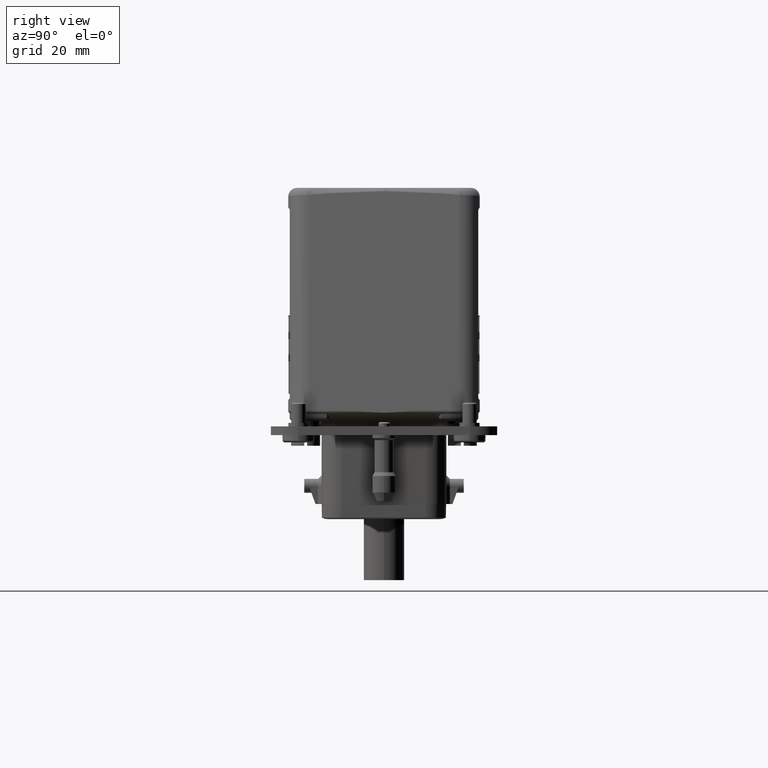
[diagram: clean part render]
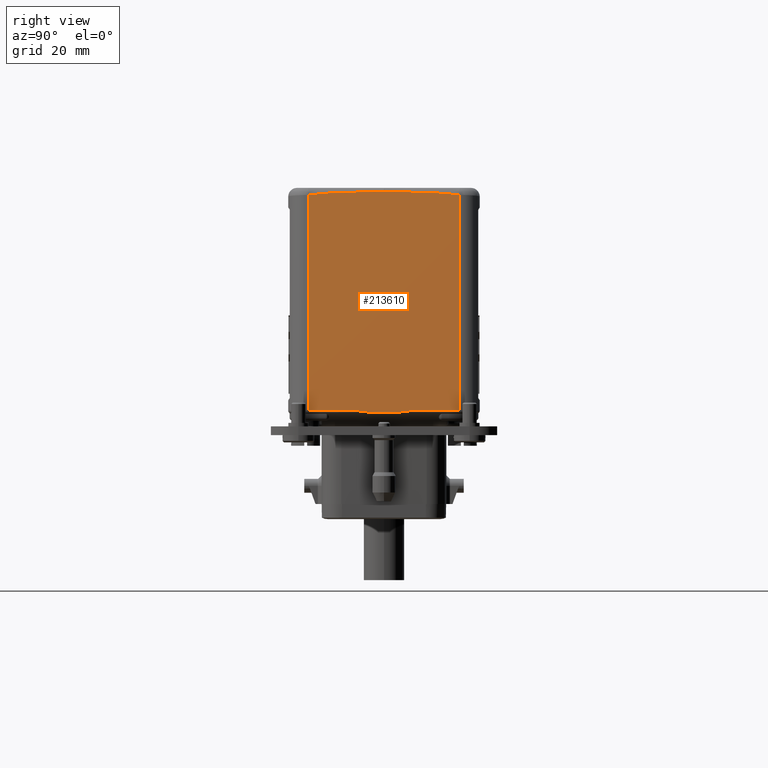
[diagram: same view with one face highlighted and labeled with its STEP entity id]
A machine part, right view. The second image highlights one B-rep face of the part: STEP entity #213610.
In plain terms, the highlighted planar face has unit normal (-0.9848, 0, -0.1736).
Its self-contained STEP definition (entity closure, byte-faithful):
#4290=CARTESIAN_POINT('',(20.5562279058652,126.305388246774,
55.127847170845));
#4300=VERTEX_POINT('',#4290);
#4330=CARTESIAN_POINT('',(20.556227906092,10.6907110109295,
75.5138341334272));
#4340=DIRECTION('',(0.,0.984807753012208,-0.173648177666931));
#4350=VECTOR('',#4340,1.);
#4360=LINE('',#4330,#4350);
#4370=CARTESIAN_POINT('',(20.5562279060906,51.9199156959813,
68.2440129543007));
#4380=VERTEX_POINT('',#4370);
#4390=EDGE_CURVE('',#4380,#4300,#4360,.T.);
#16220=CARTESIAN_POINT('',(72.6891896308619,51.9199156959813,
68.2440129543007));
#16230=VERTEX_POINT('',#16220);
#16650=CARTESIAN_POINT('',(55.3097710761084,51.9199156959813,
68.2440129543007));
#16660=VERTEX_POINT('',#16650);
#16690=CARTESIAN_POINT('',(0.,51.9199156959813,68.2440129543007));
#16700=DIRECTION('',(1.,-1.24492111605191E-30,3.55728937967512E-46));
#16710=VECTOR('',#16700,1.);
#16720=LINE('',#16690,#16710);
#16730=EDGE_CURVE('',#16660,#16230,#16720,.T.);
#30290=CARTESIAN_POINT('',(37.9356464606201,51.9199156959813,
68.2440129543007));
#30300=VERTEX_POINT('',#30290);
#30690=CARTESIAN_POINT('',(0.,51.9199156959813,68.2440129543007));
#30700=DIRECTION('',(1.,-1.24492111605191E-30,3.55728937967512E-46));
#30710=VECTOR('',#30700,1.);
#30720=LINE('',#30690,#30710);
#30730=EDGE_CURVE('',#4380,#30300,#30720,.T.);
#32530=CARTESIAN_POINT('',(46.6227087681122,127.621707233559,
54.8957446182581));
#32540=VERTEX_POINT('',#32530);
#32590=CARTESIAN_POINT('',(46.6227087681122,127.621707233559,
54.8957446182581));
#32600=CARTESIAN_POINT('',(46.4866279109697,127.617915220538,
54.8964132524648));
#32610=CARTESIAN_POINT('',(46.3505448484038,127.61419211786,
54.8970697359189));
#32620=CARTESIAN_POINT('',(46.2144638500093,127.610390305503,
54.897740098013));
#32630=CARTESIAN_POINT('',(46.1804435992638,127.609439852382,
54.8979076885421));
#32640=CARTESIAN_POINT('',(46.1464235335914,127.60848270936,
54.8980764586813));
#32650=CARTESIAN_POINT('',(46.1124035524041,127.607522074239,
54.8982458445717));
#32660=CARTESIAN_POINT('',(46.078383572765,127.606561439162,
54.8984152304545));
#32670=CARTESIAN_POINT('',(46.0443636043858,127.605600003164,
54.8985847575612));
#32680=CARTESIAN_POINT('',(46.0103436477511,127.604637761621,
54.8987544267071));
#32690=CARTESIAN_POINT('',(45.9423037344817,127.602713278536,
54.8990937649988));
#32700=CARTESIAN_POINT('',(45.8742638681897,127.600785573323,
54.8994336714388));
#32710=CARTESIAN_POINT('',(45.8062240527694,127.598854608444,
54.8997741526459));
#32720=CARTESIAN_POINT('',(45.5340647910674,127.591130748925,
54.9011360774742));
#32730=CARTESIAN_POINT('',(45.2619063429726,127.58335475075,
54.9025071957544));
#32740=CARTESIAN_POINT('',(44.9897489606416,127.575524086467,
54.9038879531444));
#32750=CARTESIAN_POINT('',(44.4454341950377,127.559862757873,
54.9066494679291));
#32760=CARTESIAN_POINT('',(43.9011236895416,127.543983016204,
54.9094494948321));
#32770=CARTESIAN_POINT('',(43.3568195037034,127.527861916296,
54.9122920797046));
#32780=CARTESIAN_POINT('',(42.812515314425,127.511740816286,
54.9151346645952));
#32790=CARTESIAN_POINT('',(42.2682174426295,127.495378432643,
54.9180197943));
#32800=CARTESIAN_POINT('',(41.7239279849553,127.478747341651,
54.9209523043604));
#32810=CARTESIAN_POINT('',(41.1796385226045,127.462116250517,
54.9238848144461));
#32820=CARTESIAN_POINT('',(40.6353574680992,127.4452165562,
54.9268646865199));
#32830=CARTESIAN_POINT('',(40.0910869646837,127.428015025623,
54.9298977804701));
#32840=CARTESIAN_POINT('',(39.5468164563282,127.41081349489,
54.9329308744478));
#32850=CARTESIAN_POINT('',(39.0025564865083,127.393310277334,
54.936017163952));
#32860=CARTESIAN_POINT('',(38.4583093013915,127.375464445104,
54.9391638656672));
#32870=CARTESIAN_POINT('',(37.9140621125191,127.357618612751,
54.9423105674042));
#32880=CARTESIAN_POINT('',(37.369827685829,127.339430387053,
54.945517642326));
#32890=CARTESIAN_POINT('',(36.8256084983589,127.320848393592,
54.9487941491284));
#32900=CARTESIAN_POINT('',(36.2813893122768,127.302266400179,
54.9520706559224));
#32910=CARTESIAN_POINT('',(35.7371853212135,127.283290979338,
54.9554165345872));
#32920=CARTESIAN_POINT('',(35.1929994853929,127.263856149855,
54.9588434193906));
#32930=CARTESIAN_POINT('',(34.6488136575707,127.244421320657,
54.9622703041437));
#32940=CARTESIAN_POINT('',(34.104645902874,127.224527630947,
54.9657780983854));
#32950=CARTESIAN_POINT('',(33.5605000955077,127.204087928212,
54.9693821694553));
#32960=CARTESIAN_POINT('',(33.0163543107663,127.183648226327,
54.9729862403752));
#32970=CARTESIAN_POINT('',(32.4722303249141,127.162663446529,
54.9766864232379));
#32980=CARTESIAN_POINT('',(31.9281337080504,127.141014349958,
54.9805037430714));
#32990=CARTESIAN_POINT('',(31.6560853987139,127.130189801636,
54.9824124029945));
#33000=CARTESIAN_POINT('',(31.3840439503096,127.119198595711,
54.9843504491496));
#33010=CARTESIAN_POINT('',(31.1120103073216,127.108021389935,
54.9863212920969));
#33020=CARTESIAN_POINT('',(30.8399766674926,127.096844184288,
54.9882921350214));
#33030=CARTESIAN_POINT('',(30.5679508229215,127.085481052521,
54.9902957617329));
#33040=CARTESIAN_POINT('',(30.2959339740184,127.073908544277,
54.9923363071708));
#33050=CARTESIAN_POINT('',(30.0239221035373,127.062336247832,
54.9943768152629));
#33060=CARTESIAN_POINT('',(29.7519038684148,127.050554053274,
54.9964543340596));
#33070=CARTESIAN_POINT('',(29.4798534997937,127.038531731008,
54.998574193846));
#33080=CARTESIAN_POINT('',(29.2078063911926,127.026509552806,
55.0006940282298));
#33090=CARTESIAN_POINT('',(28.9357407655911,127.014247988353,
55.0028560728575));
#33100=CARTESIAN_POINT('',(28.6636730462445,127.001711238407,
55.0050666401234));
#33110=CARTESIAN_POINT('',(28.3916053655621,126.989174490243,
55.0072772070751));
#33120=CARTESIAN_POINT('',(28.1195357652507,126.976362805673,
55.0095362527442));
#33130=CARTESIAN_POINT('',(27.8474821521576,126.963230147497,
55.0118518947089));
#33140=CARTESIAN_POINT('',(27.5754284838782,126.950097486658,
55.0141675371434));
#33150=CARTESIAN_POINT('',(27.3033909234762,126.936644249227,
55.0165397058803));
#33160=CARTESIAN_POINT('',(27.0313864974681,126.922809389179,
55.0189791649812));
#33170=CARTESIAN_POINT('',(26.759381940807,126.908974522485,
55.0214186252538));
#33180=CARTESIAN_POINT('',(26.4874105460446,126.894758705825,
55.0239252572839));
#33190=CARTESIAN_POINT('',(26.2154867222002,126.880078001268,
55.026513861593));
#33200=CARTESIAN_POINT('',(26.0795247518261,126.872737645834,
55.027808164304));
#33210=CARTESIAN_POINT('',(25.9435745912298,126.865280653685,
55.0291230332149));
#33220=CARTESIAN_POINT('',(25.8076377165181,126.857693357513,
55.0304608782405));
#33230=CARTESIAN_POINT('',(25.6717008292446,126.850106060641,
55.0317987233897));
#33240=CARTESIAN_POINT('',(25.5357772203902,126.842388512477,
55.033159535356));
#33250=CARTESIAN_POINT('',(25.3998681796684,126.834524103882,
55.0345462427785));
#33260=CARTESIAN_POINT('',(25.2639591269553,126.826659694594,
55.0359329503234));
#33270=CARTESIAN_POINT('',(25.1280646283061,126.818648500513,
55.0373455399876));
#33280=CARTESIAN_POINT('',(24.9921858619327,126.81047001249,
55.0387876280874));
#33290=CARTESIAN_POINT('',(24.8563070868755,126.802291523945,
55.0402297162793));
#33300=CARTESIAN_POINT('',(24.7204440164454,126.793945853322,
55.0417012831822));
#33310=CARTESIAN_POINT('',(24.584597875479,126.785407192751,
55.04320687942));
#33320=CARTESIAN_POINT('',(24.4487517304323,126.776868531924,
55.0447124757029));
#33330=CARTESIAN_POINT('',(24.3129224646,126.768137053126,
55.0462520709964));
#33340=CARTESIAN_POINT('',(24.1771116225333,126.75917953259,
55.0478315235473));
#33350=CARTESIAN_POINT('',(24.0413007863232,126.750222012439,
55.0494109760301));
#33360=CARTESIAN_POINT('',(23.9055082869425,126.741038727812,
55.0510302368815));
#33370=CARTESIAN_POINT('',(23.7697364744008,126.731585694943,
55.0526970616257));
#33380=CARTESIAN_POINT('',(23.6339646860788,126.722132663761,
55.0543638860725));
#33390=CARTESIAN_POINT('',(23.4982134276961,126.712410357853,
55.0560781909189));
#33400=CARTESIAN_POINT('',(23.3624867142123,126.702358463357,
55.0578506111257));
#33410=CARTESIAN_POINT('',(23.2267600599688,126.692306573249,
55.0596230305589));
#33420=CARTESIAN_POINT('',(23.0910576478742,126.681925964833,
55.0614534118988));
#33430=CARTESIAN_POINT('',(22.9553867416587,126.671130073277,
55.0633570188609));
#33440=CARTESIAN_POINT('',(22.8875512903449,126.665732127642,
55.0643088223167));
#33450=CARTESIAN_POINT('',(22.8197237500053,126.66022988061,
55.0652790168872));
#33460=CARTESIAN_POINT('',(22.751905521586,126.654608647756,
55.0662701919041));
#33470=CARTESIAN_POINT('',(22.6840873023016,126.64898741566,
55.0672613667875));
#33480=CARTESIAN_POINT('',(22.6162783679626,126.643247277779,
55.0682735079986));
#33490=CARTESIAN_POINT('',(22.5484806570549,126.637369763008,
55.0693098724322));
#33500=CARTESIAN_POINT('',(22.4806829584366,126.631492249302,
55.070346236678));
#33510=CARTESIAN_POINT('',(22.4128964374886,126.625477481223,
55.0714068025789));
#33520=CARTESIAN_POINT('',(22.3451238043242,126.6193016716,
55.0724957644431));
#33530=CARTESIAN_POINT('',(22.2773511893843,126.613125863639,
55.0735847260144));
#33540=CARTESIAN_POINT('',(22.2095923859358,126.606789213036,
55.0747020484835));
#33550=CARTESIAN_POINT('',(22.1418512517933,126.600260198118,
55.0758532899708));
#33560=CARTESIAN_POINT('',(22.0741101040139,126.593731181887,
55.0770045316899));
#33570=CARTESIAN_POINT('',(22.006386669277,126.58701016032,
55.0781896291292));
#33580=CARTESIAN_POINT('',(21.9386860740056,126.580053780288,
55.079416226617));
#33590=CARTESIAN_POINT('',(21.870984826008,126.573097333186,
55.0806428359308));
#33600=CARTESIAN_POINT('',(21.8033011860267,126.565905622232,
55.0819109286104));
#33610=CARTESIAN_POINT('',(21.7356512691856,126.55841709021,
55.0832313588518));
#33620=CARTESIAN_POINT('',(21.7018262796547,126.554672820755,
55.0838915745798));
#33630=CARTESIAN_POINT('',(21.6680096976973,126.550853993636,
55.0845649368354));
#33640=CARTESIAN_POINT('',(21.634203692331,126.546950097506,
55.085253299053));
#33650=CARTESIAN_POINT('',(21.6003976851993,126.543046201172,
55.0859416613066));
#33660=CARTESIAN_POINT('',(21.5666022268238,126.539057293419,
55.086645013367));
#33670=CARTESIAN_POINT('',(21.5328197376221,126.534970093007,
55.0873656970753));
#33680=CARTESIAN_POINT('',(21.4990372503493,126.530882892827,
55.0880863807425));
#33690=CARTESIAN_POINT('',(21.4652676835801,126.526697488417,
55.0888243804652));
#33700=CARTESIAN_POINT('',(21.4315139455705,126.52239671023,
55.0895827236976));
#33710=CARTESIAN_POINT('',(21.3977602174003,126.518095933297,
55.0903410667089));
#33720=CARTESIAN_POINT('',(21.3640222319482,126.513679924932,
55.0911197281307));
#33730=CARTESIAN_POINT('',(21.3303038202339,126.509125857914,
55.0919227330179));
#33740=CARTESIAN_POINT('',(21.2965848404351,126.50457171417,
55.092725751434));
#33750=CARTESIAN_POINT('',(21.2628878254397,126.499880117021,
55.0935530065687));
#33760=CARTESIAN_POINT('',(21.2292111002001,126.495018584631,
55.0944102258967));
#33770=CARTESIAN_POINT('',(21.1955300616263,126.490156429573,
55.0952675550178));
#33780=CARTESIAN_POINT('',(21.1618469957227,126.485121482354,
55.0961553520842));
#33790=CARTESIAN_POINT('',(21.1281929862429,126.479871095051,
55.0970811370248));
#33800=CARTESIAN_POINT('',(21.0945389017149,126.474620696041,
55.0980069240299));
#33810=CARTESIAN_POINT('',(21.0609137803904,126.469155837274,
55.0989705260756));
#33820=CARTESIAN_POINT('',(21.0273492061217,126.463409561697,
55.0999837494984));
#33830=CARTESIAN_POINT('',(21.0105668085375,126.460536404999,
55.1004903645439));
#33840=CARTESIAN_POINT('',(20.9937994060927,126.457592417298,
55.1010094690059));
#33850=CARTESIAN_POINT('',(20.9770508941055,126.454565233348,
55.1015432432119));
#33860=CARTESIAN_POINT('',(20.9603023718016,126.451538047533,
55.1020770177467));
#33870=CARTESIAN_POINT('',(20.9435726533732,126.448427767851,
55.1026254439722));
#33880=CARTESIAN_POINT('',(20.9268660206687,126.44521776961,
55.1031914532701));
#33890=CARTESIAN_POINT('',(20.9101593935999,126.442007772452,
55.1037574623771));
#33900=CARTESIAN_POINT('',(20.893475678402,126.438698227775,
55.1043410243982));
#33910=CARTESIAN_POINT('',(20.8768203685031,126.435266040222,
55.1049462116666));
#33920=CARTESIAN_POINT('',(20.8601651029431,126.431833861806,
55.1055513973239));
#33930=CARTESIAN_POINT('',(20.8435378846848,126.428279347984,
55.1061781540146));
#33940=CARTESIAN_POINT('',(20.8269471635762,126.424569016942,
55.1068323854847));
#33950=CARTESIAN_POINT('',(20.8103565777656,126.420858716157,
55.1074866116196));
#33960=CARTESIAN_POINT('',(20.7938016931689,126.416993205083,
55.1081682055162));
#33970=CARTESIAN_POINT('',(20.777297653002,126.4129210236,
55.1088862409821));
#33980=CARTESIAN_POINT('',(20.7690456243919,126.410884930755,
55.109245259086));
#33990=CARTESIAN_POINT('',(20.7608063414038,126.408796816797,
55.1096134498949));
#34000=CARTESIAN_POINT('',(20.7525828209415,126.406647353317,
55.1099924583004));
#34010=CARTESIAN_POINT('',(20.7443640591425,126.404499133656,
55.1103712473871));
#34020=CARTESIAN_POINT('',(20.7361373011694,126.402283519789,
55.1107619199113));
#34030=CARTESIAN_POINT('',(20.7279138502825,126.399988829262,
55.1111665357636));
#34040=CARTESIAN_POINT('',(20.7196911890115,126.397694359072,
55.1115711127646));
#34050=CARTESIAN_POINT('',(20.7114753291759,126.3953218808,
55.1119894446939));
#34060=CARTESIAN_POINT('',(20.7032884386717,126.392858144165,
55.1124238679359));
#34070=CARTESIAN_POINT('',(20.6951014606258,126.390394381186,
55.1128582958232));
#34080=CARTESIAN_POINT('',(20.6869433690646,126.387839623951,
55.1133087684452));
#34090=CARTESIAN_POINT('',(20.6788354803339,126.385172828303,
55.11377899647));
#34100=CARTESIAN_POINT('',(20.6707274902082,126.382505999304,
55.1142492303754));
#34110=CARTESIAN_POINT('',(20.6626690451431,126.379727547188,
55.1147391464399));
#34120=CARTESIAN_POINT('',(20.6546814374846,126.376802224707,
55.1152549597205));
#34130=CARTESIAN_POINT('',(20.6466939621323,126.373876950681,
55.1157707644572));
#34140=CARTESIAN_POINT('',(20.6387750319069,126.370805464831,
55.1163123502921));
#34150=CARTESIAN_POINT('',(20.6309545220908,126.367526101879,
55.1168905904601));
#34160=CARTESIAN_POINT('',(20.6268852187638,126.365819726861,
55.1171914704149));
#34170=CARTESIAN_POINT('',(20.6228423611915,126.364056411663,
55.117502390466));
#34180=CARTESIAN_POINT('',(20.6188330629386,126.362222266362,
55.1178257997691));
#34190=CARTESIAN_POINT('',(20.6148238603591,126.360388164829,
55.1181492013547));
#34200=CARTESIAN_POINT('',(20.6108476903462,126.358483271356,
55.1184850854717));
#34210=CARTESIAN_POINT('',(20.606916710498,126.356487825458,
55.1188369364221));
#34220=CARTESIAN_POINT('',(20.6029844398212,126.354491724308,
55.119188902911));
#34230=CARTESIAN_POINT('',(20.5991026276285,126.352408639673,
55.1195562069354));
#34240=CARTESIAN_POINT('',(20.5952754207575,126.350198925666,
55.1199458391345));
#34250=CARTESIAN_POINT('',(20.5914426422097,126.34798599474,
55.1203360385632));
#34260=CARTESIAN_POINT('',(20.5876459434745,126.345634845361,
55.1207506096307));
#34270=CARTESIAN_POINT('',(20.5839735858667,126.343124369704,
55.1211932742234));
#34280=CARTESIAN_POINT('',(20.5816379445432,126.341527692226,
55.1214748115423));
#34290=CARTESIAN_POINT('',(20.5793518490653,126.33986588768,
55.1217678325128));
#34300=CARTESIAN_POINT('',(20.57713965374,126.338126329207,
55.1220745636061));
#34310=CARTESIAN_POINT('',(20.5749275753885,126.336386862717,
55.1223812784805));
#34320=CARTESIAN_POINT('',(20.5727879227432,126.334569135527,
55.1227017928344));
#34330=CARTESIAN_POINT('',(20.5707527528745,126.332651801915,
55.1230398704812));
#34340=CARTESIAN_POINT('',(20.5687180218618,126.330734881749,
55.1233778752264));
#34350=CARTESIAN_POINT('',(20.5667845776654,126.328716544381,
55.123733762565));
#34360=CARTESIAN_POINT('',(20.5650067032106,126.326565737905,
55.124113007777));
#34370=CARTESIAN_POINT('',(20.5632271190641,126.324412863107,
55.1244926176899));
#34380=CARTESIAN_POINT('',(20.5615919857616,126.322109254063,
55.1248988061168));
#34390=CARTESIAN_POINT('',(20.5602287270616,126.319670971314,
55.125328741152));
#34400=CARTESIAN_POINT('',(20.5590029944471,126.317478663509,
55.125715304168));
#34410=CARTESIAN_POINT('',(20.5579969717629,126.315178441561,
55.1261208953596));
#34420=CARTESIAN_POINT('',(20.5572996632926,126.312773445419,
55.126544961068));
#34430=CARTESIAN_POINT('',(20.5569515130535,126.311572685615,
55.1267566874188));
#34440=CARTESIAN_POINT('',(20.5566825795376,126.310352758489,
55.1269717934856));
#34450=CARTESIAN_POINT('',(20.5565013856664,126.309116896271,
55.1271897093392));
#34460=CARTESIAN_POINT('',(20.5563203045094,126.307881802838,
55.1274074896351));
#34470=CARTESIAN_POINT('',(20.5562279063578,126.30663567459,
55.1276272156665));
#34480=CARTESIAN_POINT('',(20.5562279063578,126.305388246778,
55.1278471708463));
#34490=B_SPLINE_CURVE_WITH_KNOTS('',3,(#32590,#32600,#32610,#32620,
#32630,#32640,#32650,#32660,#32670,#32680,#32690,#32700,#32710,#32720,
#32730,#32740,#32750,#32760,#32770,#32780,#32790,#32800,#32810,#32820,
#32830,#32840,#32850,#32860,#32870,#32880,#32890,#32900,#32910,#32920,
#32930,#32940,#32950,#32960,#32970,#32980,#32990,#33000,#33010,#33020,
#33030,#33040,#33050,#33060,#33070,#33080,#33090,#33100,#33110,#33120,
#33130,#33140,#33150,#33160,#33170,#33180,#33190,#33200,#33210,#33220,
#33230,#33240,#33250,#33260,#33270,#33280,#33290,#33300,#33310,#33320,
#33330,#33340,#33350,#33360,#33370,#33380,#33390,#33400,#33410,#33420,
#33430,#33440,#33450,#33460,#33470,#33480,#33490,#33500,#33510,#33520,
#33530,#33540,#33550,#33560,#33570,#33580,#33590,#33600,#33610,#33620,
#33630,#33640,#33650,#33660,#33670,#33680,#33690,#33700,#33710,#33720,
#33730,#33740,#33750,#33760,#33770,#33780,#33790,#33800,#33810,#33820,
#33830,#33840,#33850,#33860,#33870,#33880,#33890,#33900,#33910,#33920,
#33930,#33940,#33950,#33960,#33970,#33980,#33990,#34000,#34010,#34020,
#34030,#34040,#34050,#34060,#34070,#34080,#34090,#34100,#34110,#34120,
#34130,#34140,#34150,#34160,#34170,#34180,#34190,#34200,#34210,#34220,
#34230,#34240,#34250,#34260,#34270,#34280,#34290,#34300,#34310,#34320,
#34330,#34340,#34350,#34360,#34370,#34380,#34390,#34400,#34410,#34420,
#34430,#34440,#34450,#34460,#34470,#34480),.UNSPECIFIED.,.F.,.F.,(4,3,3,
3,3,3,3,3,3,3,3,3,3,3,3,3,3,3,3,3,3,3,3,3,3,3,3,3,3,3,3,3,3,3,3,3,3,3,3,
3,3,3,3,3,3,3,3,3,3,3,3,3,3,3,3,3,3,3,3,3,3,3,3,4),(0.,0.40840662783463,
0.510508473848475,0.61261039372997,0.816814441654314,1.63363316162616,
3.2672797223721,4.90093273110012,6.5345862557195,8.16823574158573,
9.80187829343881,11.4355128474721,13.0691402057488,14.702762904381,
15.5195737030803,16.3363849232909,17.1532557366514,17.9702922333118,
18.7874181013628,19.6045454698283,20.4215985548211,20.830080513038,
21.2385282570074,21.6469416967078,22.0553235553437,22.4636793565749,
22.8720172015721,23.2803472594586,23.6886808864209,23.8928526028199,
24.0970293532571,24.3012123218554,24.5054026216162,24.7096016073342,
24.9138222097309,25.0159359256969,25.1180472150006,25.2201545338305,
25.322258065518,25.4243610293537,25.5265439823515,25.6287646818206,
25.6798586495539,25.7309334997687,25.7819895819187,25.8330325390887,
25.8840724730563,25.9095953280548,25.935174375757,25.9608426719582,
25.9865114096113,26.0121185433128,26.0376490300351,26.0509136589591,
26.0641775340353,26.0774569517189,26.0908518932364,26.0993658132806,
26.1078359115795,26.1162798830197,26.1247674638873,26.1323752636109,
26.136175939902,26.1399752280545),.UNSPECIFIED.);
#34500=EDGE_CURVE('',#32540,#4300,#34490,.T.);
#44510=CARTESIAN_POINT('',(72.6891896308606,126.305388277685,
55.1278471653965));
#44520=VERTEX_POINT('',#44510);
#60300=CARTESIAN_POINT('',(46.622708768356,51.2551799586163,
68.3612237998393));
#60310=VERTEX_POINT('',#60300);
#60550=CARTESIAN_POINT('',(37.9356464606156,51.9199093953149,
68.2440140652782));
#60560=VERTEX_POINT('',#60550);
#60590=CARTESIAN_POINT('',(76.1371964746942,51.7463207225417,
68.2746224318335));
#60600=DIRECTION('',(-2.16178283141495E-31,-0.17364817766693,
-0.984807753012208));
#60610=DIRECTION('',(-0.999989340512421,0.00454708909086707,
-0.000801774490404988));
#60620=AXIS2_PLACEMENT_3D('',#60590,#60600,#60610);
#60630=ELLIPSE('',#60620,38.2019569483328,1.00000000000023);
#60640=EDGE_CURVE('',#60310,#60560,#60630,.T.);
#96650=CARTESIAN_POINT('',(46.6227087681122,127.621707233559,
54.8957446182581));
#96660=CARTESIAN_POINT('',(46.7587896466766,127.617915219939,
54.8964132525704));
#96670=CARTESIAN_POINT('',(46.8948727306652,127.614192116682,
54.8970697361266));
#96680=CARTESIAN_POINT('',(47.0309537504813,127.6103903037,
54.8977400983309));
#96690=CARTESIAN_POINT('',(47.0649740065822,127.609439850422,
54.8979076888877));
#96700=CARTESIAN_POINT('',(47.0989940776097,127.608482707236,
54.8980764590559));
#96710=CARTESIAN_POINT('',(47.1330140641525,127.607522071962,
54.8982458449732));
#96720=CARTESIAN_POINT('',(47.1670340491471,127.606561436733,
54.8984152308828));
#96730=CARTESIAN_POINT('',(47.2010540228819,127.605600000582,
54.8985847580164));
#96740=CARTESIAN_POINT('',(47.2350739848721,127.604637758886,
54.8987544271893));
#96750=CARTESIAN_POINT('',(47.3031139088525,127.602713275496,
54.899093765535));
#96760=CARTESIAN_POINT('',(47.3711537858556,127.600785569975,
54.8994336720291));
#96770=CARTESIAN_POINT('',(47.4391936119869,127.598854604788,
54.8997741532905));
#96780=CARTESIAN_POINT('',(47.7113529165356,127.591130744036,
54.9011360783362));
#96790=CARTESIAN_POINT('',(47.9835114074743,127.583354744611,
54.9025071968368));
#96800=CARTESIAN_POINT('',(48.2556688326468,127.575524079059,
54.9038879544506));
#96810=CARTESIAN_POINT('',(48.7999836839383,127.559862747926,
54.9066494696832));
#96820=CARTESIAN_POINT('',(49.3442942751211,127.543983003637,
54.909449497048));
#96830=CARTESIAN_POINT('',(49.8885985466431,127.527861901005,
54.9122920824008));
#96840=CARTESIAN_POINT('',(50.4329028216054,127.511740798271,
54.9151346677716));
#96850=CARTESIAN_POINT('',(50.9772007790818,127.4953784118,
54.9180197979752));
#96860=CARTESIAN_POINT('',(51.5214903224322,127.478747317848,
54.9209523085577));
#96870=CARTESIAN_POINT('',(52.065779870459,127.462116223752,
54.9238848191654));
#96880=CARTESIAN_POINT('',(52.6100610106358,127.445216526341,
54.9268646917848));
#96890=CARTESIAN_POINT('',(53.1543315997159,127.428014992503,
54.9298977863099));
#96900=CARTESIAN_POINT('',(53.6986021936935,127.410813458511,
54.9329308808624));
#96910=CARTESIAN_POINT('',(54.2428622492385,127.393310237525,
54.9360171709714));
#96920=CARTESIAN_POINT('',(54.7871095199797,127.375464401659,
54.9391638733279));
#96930=CARTESIAN_POINT('',(55.3313567945011,127.357618565669,
54.9423105757062));
#96940=CARTESIAN_POINT('',(55.8755913068314,127.339430336124,
54.9455176513062));
#96950=CARTESIAN_POINT('',(56.4198105799306,127.320848338555,
54.948794158833));
#96960=CARTESIAN_POINT('',(56.9640298516726,127.302266341032,
54.9520706663517));
#96970=CARTESIAN_POINT('',(57.5082339283536,127.28329091582,
54.9554165457871));
#96980=CARTESIAN_POINT('',(58.0524198497472,127.263856081636,
54.9588434314194));
#96990=CARTESIAN_POINT('',(58.596605763173,127.244421247736,
54.9622703170015));
#97000=CARTESIAN_POINT('',(59.1407736034594,127.224527552995,
54.9657781121306));
#97010=CARTESIAN_POINT('',(59.6849194963965,127.204087844802,
54.9693821841627));
#97020=CARTESIAN_POINT('',(60.2290653667089,127.18364813746,
54.972986256045));
#97030=CARTESIAN_POINT('',(60.7731894381137,127.162663351781,
54.9766864399447));
#97040=CARTESIAN_POINT('',(61.3172861405044,127.141014248769,
54.9805037609138));
#97050=CARTESIAN_POINT('',(61.5893344926044,127.130189697227,
54.9824124214047));
#97060=CARTESIAN_POINT('',(61.8613759837658,127.119198487941,
54.9843504681524));
#97070=CARTESIAN_POINT('',(62.1334096695032,127.10802127864,
54.9863213117213));
#97080=CARTESIAN_POINT('',(62.4054433520815,127.096844069468,
54.9882921552673));
#97090=CARTESIAN_POINT('',(62.6774692393941,127.085480934012,
54.9902957826292));
#97100=CARTESIAN_POINT('',(62.9494861310294,127.073908421887,
54.9923363287515));
#97110=CARTESIAN_POINT('',(63.2214980441174,127.062336121565,
54.9943768375271));
#97120=CARTESIAN_POINT('',(63.4935163224865,127.05055392291,
54.9964543570463));
#97130=CARTESIAN_POINT('',(63.7655667339377,127.038531596332,
54.998574217593));
#97140=CARTESIAN_POINT('',(64.0376138854538,127.026509413814,
55.0006940527378));
#97150=CARTESIAN_POINT('',(64.3096795539173,127.014247844816,
55.002856098167));
#97160=CARTESIAN_POINT('',(64.581747316056,127.001711090045,
55.0050666662838));
#97170=CARTESIAN_POINT('',(64.8538150395309,126.989174337055,
55.0072772340864));
#97180=CARTESIAN_POINT('',(65.1258846825648,126.976362647379,
55.0095362806557));
#97190=CARTESIAN_POINT('',(65.3979383383032,126.963229983748,
55.0118519235823));
#97200=CARTESIAN_POINT('',(65.6699920492281,126.950097317453,
55.0141675669787));
#97210=CARTESIAN_POINT('',(65.9420296521986,126.936644074218,
55.0165397367392));
#97220=CARTESIAN_POINT('',(66.214034120699,126.922809207913,
55.0189791969432));
#97230=CARTESIAN_POINT('',(66.4860387198527,126.908974334963,
55.021418658319));
#97240=CARTESIAN_POINT('',(66.7580101570323,126.894758511596,
55.0239252915316));
#97250=CARTESIAN_POINT('',(67.0299340232253,126.880077799727,
55.0265138971301));
#97260=CARTESIAN_POINT('',(67.1658960147738,126.872737440637,
55.0278082004857));
#97270=CARTESIAN_POINT('',(67.3018461965274,126.865280444679,
55.0291230700682));
#97280=CARTESIAN_POINT('',(67.4377830923807,126.857693144519,
55.0304609157972));
#97290=CARTESIAN_POINT('',(67.5737200007956,126.850105843657,
55.0317987616499));
#97300=CARTESIAN_POINT('',(67.7096436307756,126.842388291324,
55.0331595743513));
#97310=CARTESIAN_POINT('',(67.8455526926077,126.834523878343,
55.0345462825472));
#97320=CARTESIAN_POINT('',(67.9814617664311,126.826659464669,
55.0359329908654));
#97330=CARTESIAN_POINT('',(68.1173562861755,126.818648265985,
55.0373455813412));
#97340=CARTESIAN_POINT('',(68.2532350736284,126.810469773096,
55.0387876702991));
#97350=CARTESIAN_POINT('',(68.3891138697676,126.802291279683,
55.0402297593492));
#97360=CARTESIAN_POINT('',(68.5249769612617,126.79394560393,
55.0417013271568));
#97370=CARTESIAN_POINT('',(68.6608231232724,126.785406937899,
55.0432069243573));
#97380=CARTESIAN_POINT('',(68.7966692893697,126.776868271611,
55.0447125216031));
#97390=CARTESIAN_POINT('',(68.9324985762313,126.768136787024,
55.0462521179175));
#97400=CARTESIAN_POINT('',(69.0683094392994,126.759179260276,
55.0478315715636));
#97410=CARTESIAN_POINT('',(69.204120296507,126.750221733914,
55.0494110251416));
#97420=CARTESIAN_POINT('',(69.3399128168708,126.741038442655,
55.0510302871623));
#97430=CARTESIAN_POINT('',(69.4756846503687,126.731585402596,
55.0526971131743));
#97440=CARTESIAN_POINT('',(69.6114564596561,126.722132364224,
55.0543639388891));
#97450=CARTESIAN_POINT('',(69.7472077389527,126.712410050571,
55.0560782451011));
#97460=CARTESIAN_POINT('',(69.8829344732756,126.702358147566,
55.0578506668083));
#97470=CARTESIAN_POINT('',(70.0186611483334,126.69230624895,
55.0596230877415));
#97480=CARTESIAN_POINT('',(70.1543635812286,126.681925631264,
55.061453470716));
#97490=CARTESIAN_POINT('',(70.2900345081858,126.671129729326,
55.0633570795088));
#97500=CARTESIAN_POINT('',(70.3578699698495,126.665731778501,
55.0643088838798));
#97510=CARTESIAN_POINT('',(70.4256975205137,126.660229525999,
55.0652790794146));
#97520=CARTESIAN_POINT('',(70.4935157592231,126.65460828733,
55.066270255457));
#97530=CARTESIAN_POINT('',(70.5613339887999,126.648987049418,
55.0672614313659));
#97540=CARTESIAN_POINT('',(70.6291429333948,126.643246905375,
55.0682735736633));
#97550=CARTESIAN_POINT('',(70.6969406545087,126.637369384006,
55.0693099392604));
#97560=CARTESIAN_POINT('',(70.7647383633356,126.631491863702,
55.0703463046696));
#97570=CARTESIAN_POINT('',(70.8325248944454,126.625477088589,
55.0714068718109));
#97580=CARTESIAN_POINT('',(70.9002975377058,126.619301271367,
55.0724958350151));
#97590=CARTESIAN_POINT('',(70.9680701627416,126.613125455805,
55.0735847979265));
#97600=CARTESIAN_POINT('',(71.0358289762213,126.606788797038,
55.0747021218351));
#97610=CARTESIAN_POINT('',(71.1035701203011,126.600259773201,
55.0758533648952));
#97620=CARTESIAN_POINT('',(71.1713112780401,126.593730748048,
55.0770046081875));
#97630=CARTESIAN_POINT('',(71.239034722548,126.587009716817,
55.0781897073308));
#97640=CARTESIAN_POINT('',(71.3067353276305,126.58005332605,
55.0794163067114));
#97650=CARTESIAN_POINT('',(71.3744365855582,126.573096868201,
55.0806429179202));
#97660=CARTESIAN_POINT('',(71.4421202351617,126.565905145472,
55.081911012676));
#97670=CARTESIAN_POINT('',(71.5097701612851,126.558416600149,
55.0832314452628));
#97680=CARTESIAN_POINT('',(71.5435951554576,126.554672324043,
55.0838916621634));
#97690=CARTESIAN_POINT('',(71.577411741972,126.550853489889,
55.0845650256597));
#97700=CARTESIAN_POINT('',(71.6112177518038,126.546949586241,
55.0852533892028));
#97710=CARTESIAN_POINT('',(71.6450237634007,126.54304568239,
55.0859417527819));
#97720=CARTESIAN_POINT('',(71.6788192261504,126.53905676664,
55.0866451062524));
#97730=CARTESIAN_POINT('',(71.7126017196209,126.534969557618,
55.0873657914788));
#97740=CARTESIAN_POINT('',(71.7463842111577,126.53088234883,
55.088086476664));
#97750=CARTESIAN_POINT('',(71.7801537820913,126.5266969352,
55.0888244780124));
#97760=CARTESIAN_POINT('',(71.8139075241389,126.522396146994,
55.0895828230114));
#97770=CARTESIAN_POINT('',(71.8476612563327,126.518095360043,
55.0903411677891));
#97780=CARTESIAN_POINT('',(71.8813992456886,126.513679340863,
55.0911198311178));
#97790=CARTESIAN_POINT('',(71.9151176611363,126.509125261956,
55.0919228381015));
#97800=CARTESIAN_POINT('',(71.9488366449058,126.504571106289,
55.0927258586198));
#97810=CARTESIAN_POINT('',(71.9825336626347,126.499879496302,
55.0935531160183));
#97820=CARTESIAN_POINT('',(72.0162103922862,126.495017949284,
55.0944103379255));
#97830=CARTESIAN_POINT('',(72.0498914347503,126.490155779672,
55.0952676696129));
#97840=CARTESIAN_POINT('',(72.0835744980676,126.485120817293,
55.0961554693524));
#97850=CARTESIAN_POINT('',(72.1172285021019,126.479870413108,
55.0970812572699));
#97860=CARTESIAN_POINT('',(72.1508825839844,126.474619996777,
55.0980070473289));
#97870=CARTESIAN_POINT('',(72.1845076838689,126.469155077745,
55.0989706600008));
#97880=CARTESIAN_POINT('',(72.2180722596072,126.463408833451,
55.0999838779076));
#97890=CARTESIAN_POINT('',(72.2348546565395,126.460535692633,
55.1004904901534));
#97900=CARTESIAN_POINT('',(72.2516220664673,126.45759176883,
55.1010095833483));
#97910=CARTESIAN_POINT('',(72.2683705937078,126.454564685794,
55.1015433397604));
#97920=CARTESIAN_POINT('',(72.2851191312399,126.451537600898,
55.1020770965005));
#97930=CARTESIAN_POINT('',(72.3018488726724,126.448427459154,
55.1026254984038));
#97940=CARTESIAN_POINT('',(72.3185555354868,126.445217624663,
55.1031914788281));
#97950=CARTESIAN_POINT('',(72.3352621926353,126.442007791261,
55.1037574590604));
#97960=CARTESIAN_POINT('',(72.3519459450107,126.438698436167,
55.1043409876531));
#97970=CARTESIAN_POINT('',(72.3686012979576,126.435266452543,
55.1049461389633));
#97980=CARTESIAN_POINT('',(72.3852566065339,126.431834478062,
55.1055512886613));
#97990=CARTESIAN_POINT('',(72.4018838736908,126.428280182548,
55.1061780068585));
#98000=CARTESIAN_POINT('',(72.4184746475301,126.424570072232,
55.1068321994085));
#98010=CARTESIAN_POINT('',(72.4350652860239,126.420859992184,
55.1074863866216));
#98020=CARTESIAN_POINT('',(72.4516202271865,126.416994704322,
55.1081679411599));
#98030=CARTESIAN_POINT('',(72.4681243246034,126.412922735557,
55.1088859391179));
#98040=CARTESIAN_POINT('',(72.4763763818242,126.410886749074,
55.1092449384673));
#98050=CARTESIAN_POINT('',(72.4846156935855,126.408798738832,
55.1096131109883));
#98060=CARTESIAN_POINT('',(72.4928392424543,126.406649374602,
55.1099921018934));
#98070=CARTESIAN_POINT('',(72.5010580348279,126.404501253562,
55.1103708735905));
#98080=CARTESIAN_POINT('',(72.5092848315891,126.402285731772,
55.110761529879));
#98090=CARTESIAN_POINT('',(72.5175083067796,126.399991130583,
55.1111661299787));
#98100=CARTESIAN_POINT('',(72.5257309942794,126.397696749183,
55.1115706913235));
#98110=CARTESIAN_POINT('',(72.533946874075,126.395324354751,
55.1119890084695));
#98120=CARTESIAN_POINT('',(72.5421337798041,126.392860693846,
55.1124234183584));
#98130=CARTESIAN_POINT('',(72.5503207730786,126.390397006596,
55.1128578328925));
#98140=CARTESIAN_POINT('',(72.5584788752703,126.387842316985,
55.1133082935906));
#98150=CARTESIAN_POINT('',(72.5665867716035,126.385175576745,
55.1137785118454));
#98160=CARTESIAN_POINT('',(72.5746947692788,126.382508803174,
55.1142487359776));
#98170=CARTESIAN_POINT('',(72.5827532191301,126.379730394292,
55.1147386444186));
#98180=CARTESIAN_POINT('',(72.5907408287787,126.376805097204,
55.1152544532219));
#98190=CARTESIAN_POINT('',(72.5987283059518,126.373879848632,
55.1157702534704));
#98200=CARTESIAN_POINT('',(72.606647235874,126.370808370437,
55.1163118379554));
#98210=CARTESIAN_POINT('',(72.6144677384381,126.367528988515,
55.1168900814683));
#98220=CARTESIAN_POINT('',(72.6185366158152,126.365822780659,
55.117190931948));
#98230=CARTESIAN_POINT('',(72.6225790509517,126.364059637061,
55.1175018217413));
#98240=CARTESIAN_POINT('',(72.6265879310222,126.362225670338,
55.1178251995563));
#98250=CARTESIAN_POINT('',(72.6305967154377,126.360391747374,
55.1181485696553));
#98260=CARTESIAN_POINT('',(72.6345724713804,126.358487039428,
55.1184844210589));
#98270=CARTESIAN_POINT('',(72.6385030430434,126.356491790209,
55.1188362373294));
#98280=CARTESIAN_POINT('',(72.6424349140134,126.354495881432,
55.1191881698979));
#98290=CARTESIAN_POINT('',(72.6463162963253,126.352413020268,
55.1195554345182));
#98300=CARTESIAN_POINT('',(72.6501431488229,126.350203509794,
55.119945030829));
#98310=CARTESIAN_POINT('',(72.6539755637154,126.347990787759,
55.1203351934247));
#98320=CARTESIAN_POINT('',(72.6577718684024,126.345639886654,
55.1207497207148));
#98330=CARTESIAN_POINT('',(72.6614438498358,126.343129695771,
55.1211923350941));
#98340=CARTESIAN_POINT('',(72.663779237905,126.341533208985,
55.1214738387889));
#98350=CARTESIAN_POINT('',(72.6660650877435,126.339871610785,
55.121766823375));
#98360=CARTESIAN_POINT('',(72.668277057682,126.338132276259,
55.1220735149805));
#98370=CARTESIAN_POINT('',(72.6704889106889,126.336393033678,
55.1223801903734));
#98380=CARTESIAN_POINT('',(72.6726283574522,126.334575548261,
55.1227006620964));
#98390=CARTESIAN_POINT('',(72.6746633558729,126.332658480536,
55.1230386928602));
#98400=CARTESIAN_POINT('',(72.6766979157997,126.330741825893,
55.1233766507863));
#98410=CARTESIAN_POINT('',(72.6786312208211,126.328723779966,
55.1237324867361));
#98420=CARTESIAN_POINT('',(72.6804090155635,126.326573300521,
55.1241116742837));
#98430=CARTESIAN_POINT('',(72.6821885195687,126.324420753494,
55.1244912264017));
#98440=CARTESIAN_POINT('',(72.6838236288892,126.32211751759,
55.124897349034));
#98450=CARTESIAN_POINT('',(72.6851869799117,126.319679632954,
55.1253272138712));
#98460=CARTESIAN_POINT('',(72.6864136722019,126.317486115482,
55.1257139901841));
#98470=CARTESIAN_POINT('',(72.6874204408783,126.315184533616,
55.1261198211659));
#98480=CARTESIAN_POINT('',(72.6881181062266,126.312778052928,
55.1265441486399));
#98490=CARTESIAN_POINT('',(72.6884664329385,126.311576557817,
55.1267560046452));
#98500=CARTESIAN_POINT('',(72.6887354454718,126.310355866423,
55.126971245473));
#98510=CARTESIAN_POINT('',(72.6889166034536,126.309119231934,
55.1271892974987));
#98520=CARTESIAN_POINT('',(72.6890976477708,126.30788337335,
55.1274072127114));
#98530=CARTESIAN_POINT('',(72.6891898959212,126.306636464169,
55.1276270764425));
#98540=CARTESIAN_POINT('',(72.689189630859,126.305388277685,
55.1278471653966));
#98550=B_SPLINE_CURVE_WITH_KNOTS('',3,(#96650,#96660,#96670,#96680,
#96690,#96700,#96710,#96720,#96730,#96740,#96750,#96760,#96770,#96780,
#96790,#96800,#96810,#96820,#96830,#96840,#96850,#96860,#96870,#96880,
#96890,#96900,#96910,#96920,#96930,#96940,#96950,#96960,#96970,#96980,
#96990,#97000,#97010,#97020,#97030,#97040,#97050,#97060,#97070,#97080,
#97090,#97100,#97110,#97120,#97130,#97140,#97150,#97160,#97170,#97180,
#97190,#97200,#97210,#97220,#97230,#97240,#97250,#97260,#97270,#97280,
#97290,#97300,#97310,#97320,#97330,#97340,#97350,#97360,#97370,#97380,
#97390,#97400,#97410,#97420,#97430,#97440,#97450,#97460,#97470,#97480,
#97490,#97500,#97510,#97520,#97530,#97540,#97550,#97560,#97570,#97580,
#97590,#97600,#97610,#97620,#97630,#97640,#97650,#97660,#97670,#97680,
#97690,#97700,#97710,#97720,#97730,#97740,#97750,#97760,#97770,#97780,
#97790,#97800,#97810,#97820,#97830,#97840,#97850,#97860,#97870,#97880,
#97890,#97900,#97910,#97920,#97930,#97940,#97950,#97960,#97970,#97980,
#97990,#98000,#98010,#98020,#98030,#98040,#98050,#98060,#98070,#98080,
#98090,#98100,#98110,#98120,#98130,#98140,#98150,#98160,#98170,#98180,
#98190,#98200,#98210,#98220,#98230,#98240,#98250,#98260,#98270,#98280,
#98290,#98300,#98310,#98320,#98330,#98340,#98350,#98360,#98370,#98380,
#98390,#98400,#98410,#98420,#98430,#98440,#98450,#98460,#98470,#98480,
#98490,#98500,#98510,#98520,#98530,#98540),.UNSPECIFIED.,.F.,.F.,(4,3,3,
3,3,3,3,3,3,3,3,3,3,3,3,3,3,3,3,3,3,3,3,3,3,3,3,3,3,3,3,3,3,3,3,3,3,3,3,
3,3,3,3,3,3,3,3,3,3,3,3,3,3,3,3,3,3,3,3,3,3,3,3,4),(0.,0.408406670669654
,0.510508532635095,0.61261046165332,0.816814540734079,1.63363338899721,
3.26728020733011,4.90093347413337,6.53458725597853,8.16823699900959,
9.80187980804104,11.4355146191604,13.0691422345177,14.7027651903106,
15.519576117602,16.3363874663721,17.1532584088379,17.9702950345659,
18.7874210313676,19.6045485282391,20.4216017414026,20.8300837636509,
21.2385315716422,21.6469450753712,22.0553269980522,22.4636828633808,
22.8720207725583,23.2803508947312,23.6886845860874,23.8928563347227,
24.0970331174188,24.3012161182976,24.5054064503612,24.709605468466,
24.9138261034482,25.0159398354456,25.1180511406838,25.2201584754196,
25.3222620230542,25.4243650035132,25.5265479595498,25.6287686442105,
25.6798626012285,25.7309374424392,25.7819935205714,25.8330364800607,
25.8840764215151,25.909599281216,25.9351783441379,25.9608466282007,
25.9865153365119,26.0121224421713,26.0376529187931,26.0509161769046,
26.0641786873844,26.0774567642665,26.0908503439252,26.0993633059912,
26.1078324607848,26.1162755064989,26.1247621519635,26.1323745730592,
26.136177556398,26.1399791524654),.UNSPECIFIED.);
#98560=EDGE_CURVE('',#32540,#44520,#98550,.T.);
#126530=CARTESIAN_POINT('',(17.1082210619494,51.7463207225418,
68.2746224318335));
#126540=DIRECTION('',(-2.16178283141495E-31,-0.17364817766693,
-0.984807753012208));
#126550=DIRECTION('',(-0.999989340512421,-0.00454708909085954,
0.00080177449040366));
#126560=AXIS2_PLACEMENT_3D('',#126530,#126540,#126550);
#126570=ELLIPSE('',#126560,38.2019569484139,1.00000000000068);
#126580=CARTESIAN_POINT('',(55.309771076109,51.9199093953149,
68.2440140652782));
#126590=VERTEX_POINT('',#126580);
#126600=EDGE_CURVE('',#126590,#60310,#126570,.T.);
#167570=CARTESIAN_POINT('',(55.3097710760224,0.,77.3988949276111));
#167580=DIRECTION('',(1.63217594738777E-12,0.984807753012208,
-0.17364817766693));
#167590=VECTOR('',#167580,1.);
#167600=LINE('',#167570,#167590);
#167610=EDGE_CURVE('',#126590,#16660,#167600,.T.);
#213340=CARTESIAN_POINT('',(46.6227085308285,140.881459228776,
52.5576925839983));
#213350=DIRECTION('',(-2.16178283141495E-31,-0.17364817766693,
-0.984807753012208));
#213360=DIRECTION('',(-1.,1.24492111605191E-30,1.77852388795833E-46));
#213370=AXIS2_PLACEMENT_3D('',#213340,#213350,#213360);
#213380=PLANE('',#213370);
#213390=ORIENTED_EDGE('',*,*,#167610,.T.);
#213400=ORIENTED_EDGE('',*,*,#126600,.F.);
#213410=ORIENTED_EDGE('',*,*,#60640,.F.);
#213420=CARTESIAN_POINT('',(37.9356464607058,0.,77.3988949276111));
#213430=DIRECTION('',(-1.62511854436943E-12,0.984807753012208,
-0.173648177666931));
#213440=VECTOR('',#213430,1.);
#213450=LINE('',#213420,#213440);
#213460=EDGE_CURVE('',#60560,#30300,#213450,.T.);
#213470=ORIENTED_EDGE('',*,*,#213460,.F.);
#213480=ORIENTED_EDGE('',*,*,#30730,.T.);
#213490=ORIENTED_EDGE('',*,*,#4390,.F.);
#213500=ORIENTED_EDGE('',*,*,#34500,.T.);
#213510=ORIENTED_EDGE('',*,*,#98560,.F.);
#213520=CARTESIAN_POINT('',(72.6891896308539,0.,77.3988949276111));
#213530=DIRECTION('',(-5.24185709160056E-14,-0.984807753012208,
0.173648177666931));
#213540=VECTOR('',#213530,1.);
#213550=LINE('',#213520,#213540);
#213560=EDGE_CURVE('',#44520,#16230,#213550,.T.);
#213570=ORIENTED_EDGE('',*,*,#213560,.F.);
#213580=ORIENTED_EDGE('',*,*,#16730,.T.);
#213590=EDGE_LOOP('',(#213580,#213570,#213510,#213500,#213490,#213480,
#213470,#213410,#213400,#213390));
#213600=FACE_OUTER_BOUND('',#213590,.T.);
#213610=ADVANCED_FACE('',(#213600),#213380,.F.);